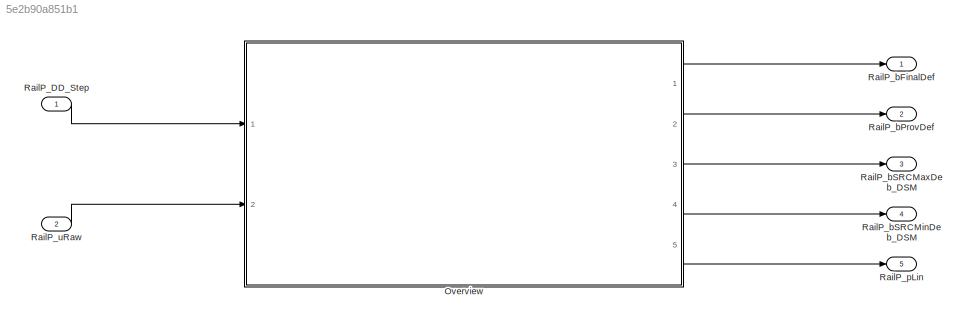
MODEL slx_5e2b90a851b1
KIND model
CONFIG AbsTol = auto
CONFIG EnableMultiTasking = off
CONFIG FixedStep = 0.001
CONFIG MaxStep = auto
CONFIG MinStep = auto
CONFIG RelTol = 1e-3
CONFIG SampleTimeConstraint = Unconstrained
CONFIG SolverName = FixedStepDiscrete
CONFIG StartTime = 0.0
CONFIG StopTime = Inf
WORKSPACE source: mxarray member
WORKSPACE RailP_DD_DT = 10
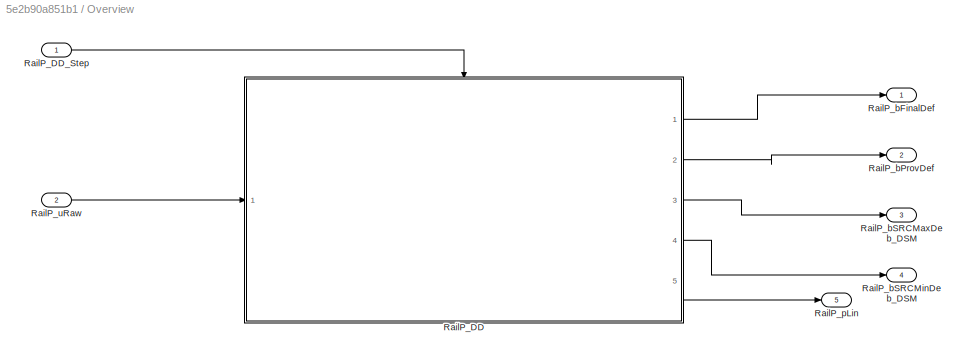
BLOCK [SubSystem] Overview
  Ports = [2, 5]
  RequestExecContextInheritance = off
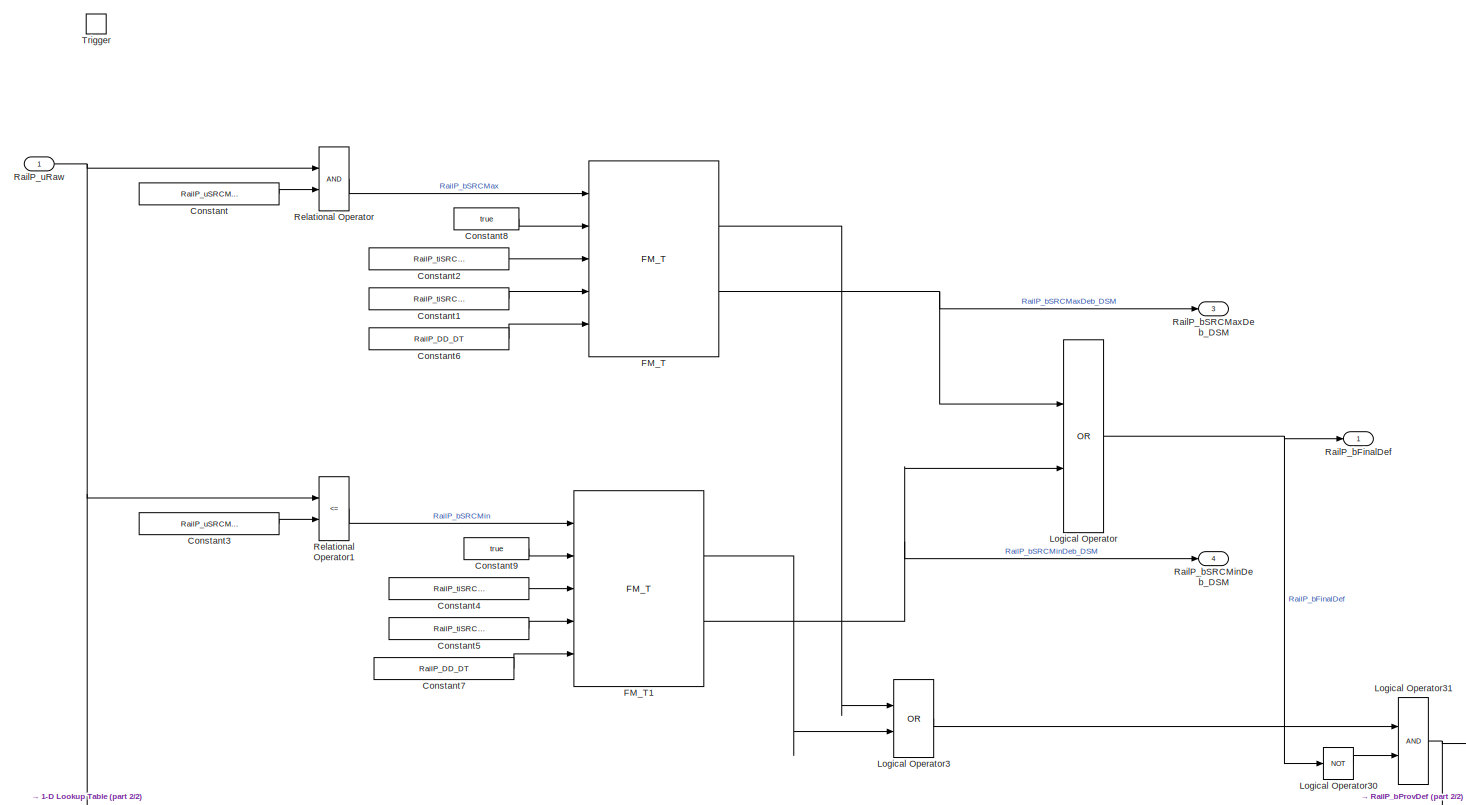
[diagram: Overview/RailP_DD - part 1/2, most of the canvas]
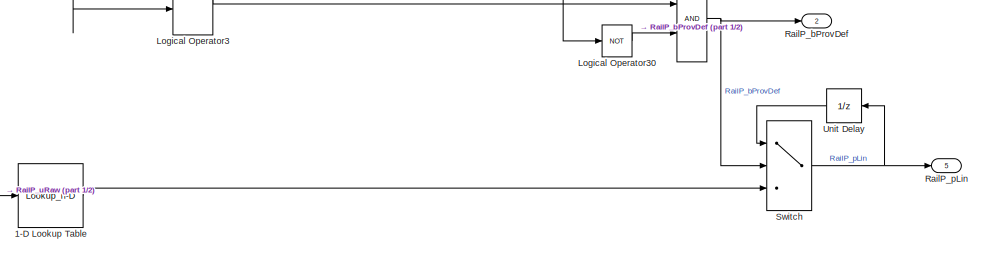
[diagram: Overview/RailP_DD - part 2/2, bottom right region]
BLOCK [SubSystem] Overview/RailP_DD
  Ports = [1, 5, 0, 1]
  RequestExecContextInheritance = off
BLOCK [Lookup_n-D] Overview/RailP_DD/1-D Lookup Table
  BreakpointsForDimension1 = RailP_pLin_CURX
  ExtrapMethod = Clip
  InputPortMap = u0
  InputSameDT = off
  InternalRulePriority = Speed
  NumberOfTableDimensions = 1
  OutDataTypeStr = Inherit: Inherit from 'Table data'
  Ports = [1, 1]
  RndMeth = Simplest
  Table = RailP_pLin_CUR
  TableDataTypeStr = Inherit: Inherit from 'Table data'
BLOCK [Constant] Overview/RailP_DD/Constant
  Value = RailP_uSRCMax_C
BLOCK [Constant] Overview/RailP_DD/Constant1
  Value = RailP_tiSRCMaxOKDeb_C
BLOCK [Constant] Overview/RailP_DD/Constant2
  Value = RailP_tiSRCMaxDefDeb_C
BLOCK [Constant] Overview/RailP_DD/Constant3
  Value = RailP_uSRCMin_C
BLOCK [Constant] Overview/RailP_DD/Constant4
  Value = RailP_tiSRCMinDefDeb_C
BLOCK [Constant] Overview/RailP_DD/Constant5
  Value = RailP_tiSRCMinOKDeb_C
BLOCK [Constant] Overview/RailP_DD/Constant6
  OutDataTypeStr = Inherit: Inherit via back propagation
  Value = RailP_DD_DT
BLOCK [Constant] Overview/RailP_DD/Constant7
  OutDataTypeStr = Inherit: Inherit via back propagation
  Value = RailP_DD_DT
BLOCK [Constant] Overview/RailP_DD/Constant8
  OutDataTypeStr = boolean
  Value = true
BLOCK [Constant] Overview/RailP_DD/Constant9
  OutDataTypeStr = boolean
  Value = true
BLOCK [Reference] Overview/RailP_DD/FM_T  REF=sllib/Fault Manager/FM_T  (lib defined in slx_2b0aa6d284ff)
  Ports = [5, 2]
  SourceBlock = sllib/Fault Manager/FM_T
  SourceProductName = sllib
  SourceType = FM_T
BLOCK [Reference] Overview/RailP_DD/FM_T1  REF=sllib/Fault Manager/FM_T  (lib defined in slx_2b0aa6d284ff)
  Ports = [5, 2]
  SourceBlock = sllib/Fault Manager/FM_T
  SourceProductName = sllib
  SourceType = FM_T
BLOCK [Logic] Overview/RailP_DD/Logical Operator
  AllPortsSameDT = off
  Operator = OR
  OutDataTypeStr = boolean
  Ports = [2, 1]
BLOCK [Logic] Overview/RailP_DD/Logical Operator3
  AllPortsSameDT = off
  Operator = OR
  OutDataTypeStr = boolean
  Ports = [2, 1]
BLOCK [Logic] Overview/RailP_DD/Logical Operator30
  AllPortsSameDT = off
  Operator = NOT
  OutDataTypeStr = boolean
  Ports = [1, 1]
BLOCK [Logic] Overview/RailP_DD/Logical Operator31
  AllPortsSameDT = off
  OutDataTypeStr = boolean
  Ports = [2, 1]
BLOCK [Outport] Overview/RailP_DD/RailP_bFinalDef
  VectorParamsAs1DForOutWhenUnconnected = off
BLOCK [Outport] Overview/RailP_DD/RailP_bProvDef
  Port = 2
  VectorParamsAs1DForOutWhenUnconnected = off
BLOCK [Outport] Overview/RailP_DD/RailP_bSRCMaxDeb_DSM
  Port = 3
  VectorParamsAs1DForOutWhenUnconnected = off
BLOCK [Outport] Overview/RailP_DD/RailP_bSRCMinDeb_DSM
  Port = 4
  VectorParamsAs1DForOutWhenUnconnected = off
BLOCK [Outport] Overview/RailP_DD/RailP_pLin
  Port = 5
BLOCK [Inport] Overview/RailP_DD/RailP_uRaw
  Tag = mv
BLOCK [RelationalOperator] Overview/RailP_DD/Relational Operator
  OutDataTypeStr = boolean
  Ports = [2, 1]
BLOCK [RelationalOperator] Overview/RailP_DD/Relational Operator1
  Operator = <=
  OutDataTypeStr = boolean
  Ports = [2, 1]
BLOCK [Switch] Overview/RailP_DD/Switch
  Criteria = u2 ~= 0
  SaturateOnIntegerOverflow = off
BLOCK [TriggerPort] Overview/RailP_DD/Trigger
  PortDimensions = 1
  Ports = []
  StatesWhenEnabling = held
  TriggerType = function-call
  VariantControl = Variant
BLOCK [UnitDelay] Overview/RailP_DD/Unit Delay
  AttributesFormatString = InitialValue=%<InitialCondition>
  HasFrameUpgradeWarning = on
  SampleTime = -1
BLOCK [Inport] Overview/RailP_DD_Step
BLOCK [Outport] Overview/RailP_bFinalDef
  VectorParamsAs1DForOutWhenUnconnected = off
BLOCK [Outport] Overview/RailP_bProvDef
  Port = 2
  VectorParamsAs1DForOutWhenUnconnected = off
BLOCK [Outport] Overview/RailP_bSRCMaxDeb_DSM
  Port = 3
  VectorParamsAs1DForOutWhenUnconnected = off
BLOCK [Outport] Overview/RailP_bSRCMinDeb_DSM
  Port = 4
  VectorParamsAs1DForOutWhenUnconnected = off
BLOCK [Outport] Overview/RailP_pLin
  Port = 5
BLOCK [Inport] Overview/RailP_uRaw
  Port = 2
BLOCK [Inport] RailP_DD_Step
  OutputFunctionCall = on
BLOCK [Outport] RailP_bFinalDef
  Description = Status of final default
  OutDataTypeStr = boolean
  OutMax = 1
  OutMin = 0
  PortDimensions = [1 1]
BLOCK [Outport] RailP_bProvDef
  Description = Status of provisional default
  OutDataTypeStr = boolean
  OutMax = 1
  OutMin = 0
  Port = 2
  PortDimensions = [1 1]
BLOCK [Outport] RailP_bSRCMaxDeb_DSM
  Description = The debounce result of SRC
  OutDataTypeStr = boolean
  OutMax = 1
  OutMin = 0
  Port = 3
  PortDimensions = [1 1]
BLOCK [Outport] RailP_bSRCMinDeb_DSM
  Description = The debounce result of SRC
  OutDataTypeStr = boolean
  OutMax = 1
  OutMin = 0
  Port = 4
  PortDimensions = [1 1]
BLOCK [Outport] RailP_pLin
  Description = Fuel pressure
  OutDataTypeStr = Press_bar1
  OutMax = 2000
  OutMin = 0
  Port = 5
  PortDimensions = [1 1]
  Unit = bar
BLOCK [Inport] RailP_uRaw
  Description = Raw value of rail pressure
  OutDataTypeStr = Volt_mV1
  OutMax = 5000
  OutMin = 0
  Port = 2
  PortDimensions = [1 1]
  Unit = mv
LINE Overview/RailP_DD/1-D Lookup Table:1 -> Overview/RailP_DD/Switch:3
LINE Overview/RailP_DD/Constant1:1 -> Overview/RailP_DD/FM_T:4
LINE Overview/RailP_DD/Constant2:1 -> Overview/RailP_DD/FM_T:3
LINE Overview/RailP_DD/Constant3:1 -> Overview/RailP_DD/Relational Operator1:2
LINE Overview/RailP_DD/Constant4:1 -> Overview/RailP_DD/FM_T1:3
LINE Overview/RailP_DD/Constant5:1 -> Overview/RailP_DD/FM_T1:4
LINE Overview/RailP_DD/Constant6:1 -> Overview/RailP_DD/FM_T:5
LINE Overview/RailP_DD/Constant7:1 -> Overview/RailP_DD/FM_T1:5
LINE Overview/RailP_DD/Constant8:1 -> Overview/RailP_DD/FM_T:2
LINE Overview/RailP_DD/Constant9:1 -> Overview/RailP_DD/FM_T1:2
LINE Overview/RailP_DD/Constant:1 -> Overview/RailP_DD/Relational Operator:2
LINE Overview/RailP_DD/FM_T1:1 -> Overview/RailP_DD/Logical Operator3:2
NET Overview/RailP_DD/FM_T1:2 -> Overview/RailP_DD/Logical Operator:2, Overview/RailP_DD/RailP_bSRCMinDeb_DSM:1
LINE Overview/RailP_DD/FM_T:1 -> Overview/RailP_DD/Logical Operator3:1
NET Overview/RailP_DD/FM_T:2 -> Overview/RailP_DD/Logical Operator:1, Overview/RailP_DD/RailP_bSRCMaxDeb_DSM:1
LINE Overview/RailP_DD/Logical Operator30:1 -> Overview/RailP_DD/Logical Operator31:2
NET Overview/RailP_DD/Logical Operator31:1 -> Overview/RailP_DD/RailP_bProvDef:1, Overview/RailP_DD/Switch:2
LINE Overview/RailP_DD/Logical Operator3:1 -> Overview/RailP_DD/Logical Operator31:1
NET Overview/RailP_DD/Logical Operator:1 -> Overview/RailP_DD/Logical Operator30:1, Overview/RailP_DD/RailP_bFinalDef:1
NET Overview/RailP_DD/RailP_uRaw:1 -> Overview/RailP_DD/1-D Lookup Table:1, Overview/RailP_DD/Relational Operator1:1, Overview/RailP_DD/Relational Operator:1
LINE Overview/RailP_DD/Relational Operator1:1 -> Overview/RailP_DD/FM_T1:1
LINE Overview/RailP_DD/Relational Operator:1 -> Overview/RailP_DD/FM_T:1
NET Overview/RailP_DD/Switch:1 -> Overview/RailP_DD/RailP_pLin:1, Overview/RailP_DD/Unit Delay:1
LINE Overview/RailP_DD/Unit Delay:1 -> Overview/RailP_DD/Switch:1
LINE Overview/RailP_DD:1 -> Overview/RailP_bFinalDef:1
LINE Overview/RailP_DD:2 -> Overview/RailP_bProvDef:1
LINE Overview/RailP_DD:3 -> Overview/RailP_bSRCMaxDeb_DSM:1
LINE Overview/RailP_DD:4 -> Overview/RailP_bSRCMinDeb_DSM:1
LINE Overview/RailP_DD:5 -> Overview/RailP_pLin:1
LINE Overview/RailP_DD_Step:1 -> Overview/RailP_DD:trigger
LINE Overview/RailP_uRaw:1 -> Overview/RailP_DD:1
LINE Overview:1 -> RailP_bFinalDef:1
LINE Overview:2 -> RailP_bProvDef:1
LINE Overview:3 -> RailP_bSRCMaxDeb_DSM:1
LINE Overview:4 -> RailP_bSRCMinDeb_DSM:1
LINE Overview:5 -> RailP_pLin:1
LINE RailP_DD_Step:1 -> Overview:1
LINE RailP_uRaw:1 -> Overview:2
note: NET lines group one-source signal fan-out (src -> all destinations, sorted); 1:1 wires keep LINE
